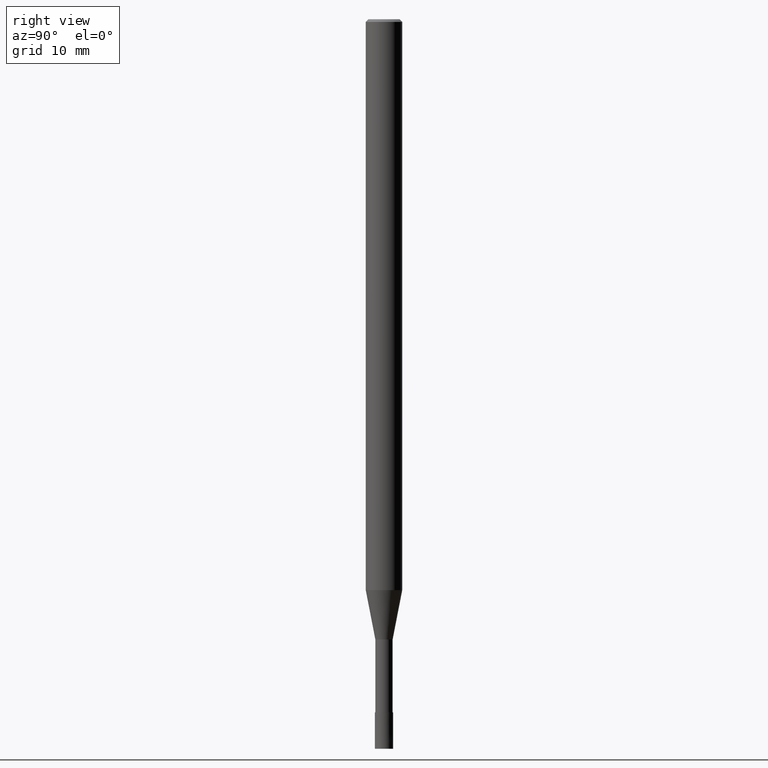
[diagram: clean part render]
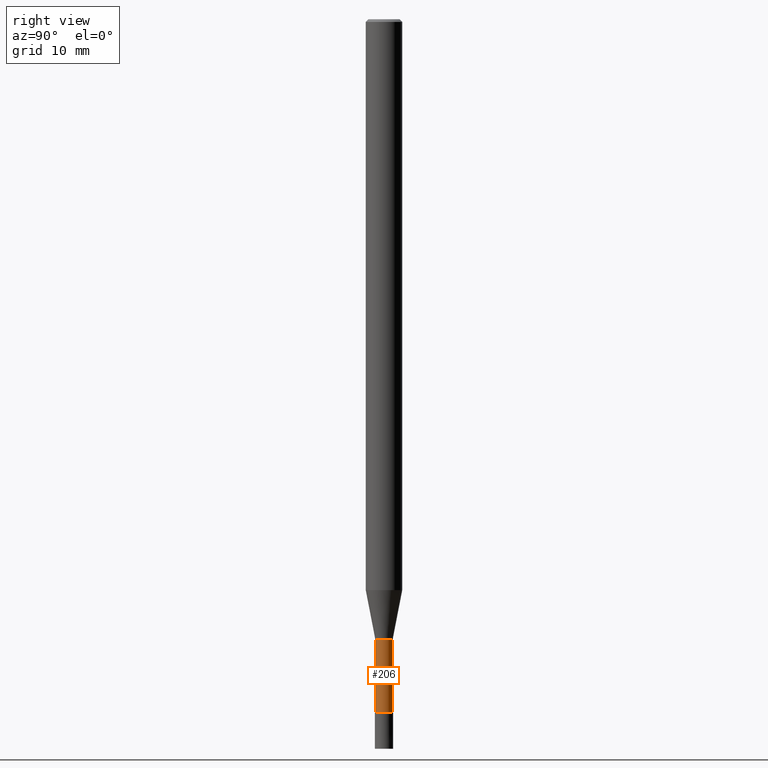
[diagram: same view with one face highlighted and labeled with its STEP entity id]
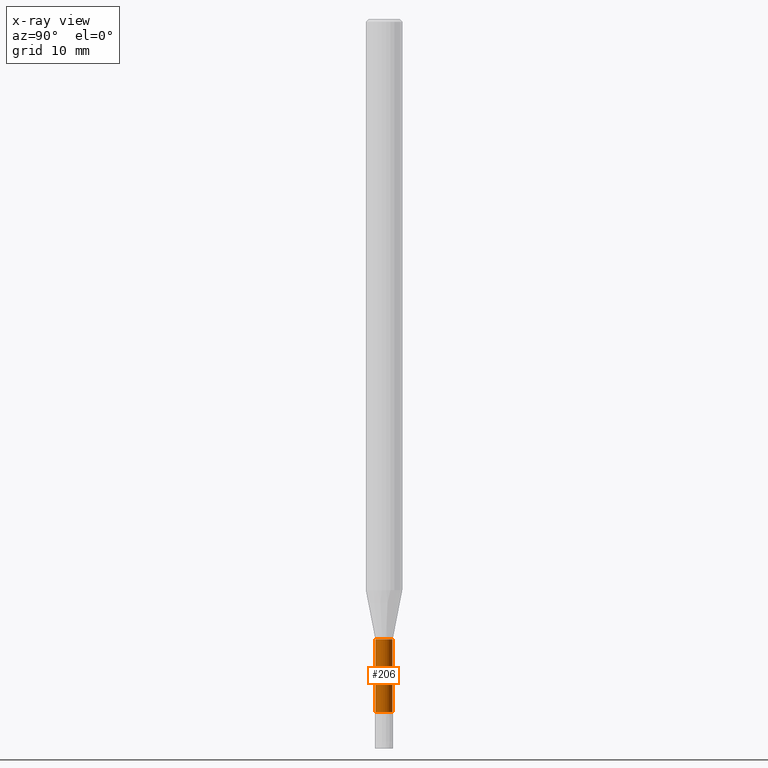
[diagram: x-ray of the same camera — body ghosted, the highlighted face saturated]
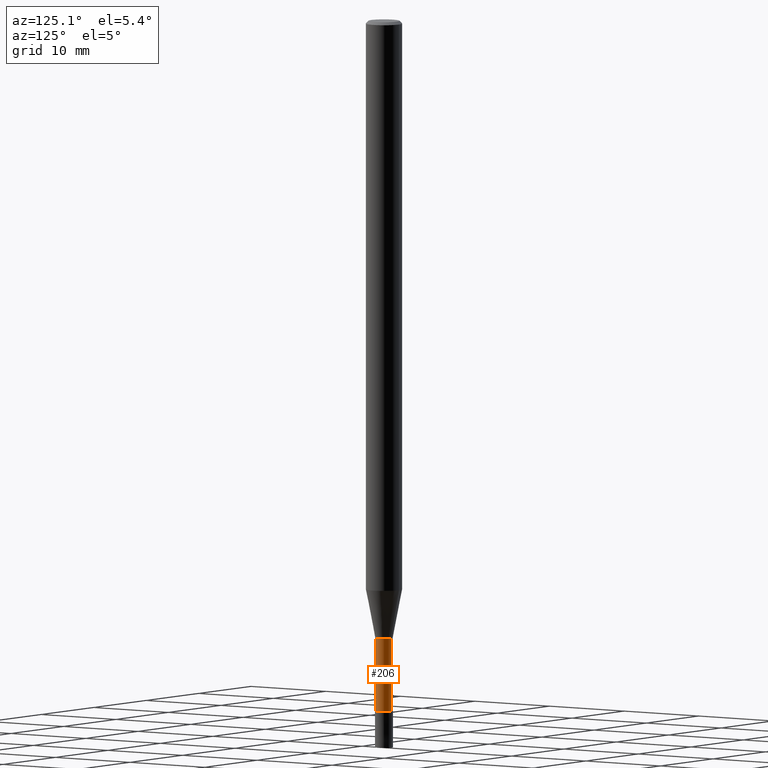
[diagram: same view with one face highlighted and labeled with its STEP entity id]
A machine part, right view. The second image highlights one B-rep face of the part: STEP entity #206.
The next image is the same camera in x-ray: the body ghosted, the highlighted face saturated — about 0% of this face is hidden behind the body in this view.
A second angle (auxiliary view) of the same face is appended — the face is thin or edge-on in the first view.
In plain terms, the highlighted cylindrical surface (edge-blend (fillet) strip) has radius 0.9499 mm, axis along (-0, -0, 1).
Its self-contained STEP definition (entity closure, byte-faithful):
#98=EDGE_CURVE('',#120,#146,#235,.T.);
#106=EDGE_CURVE('',#112,#146,#246,.T.);
#112=VERTEX_POINT('',#252);
#120=VERTEX_POINT('',#260);
#126=EDGE_CURVE('',#120,#188,#266,.T.);
#146=VERTEX_POINT('',#291);
#188=VERTEX_POINT('',#338);
#198=EDGE_CURVE('',#188,#112,#350,.T.);
#206=ADVANCED_FACE('',(#358),#359,.T.);
#235=CIRCLE('',#381,0.94995);
#246=LINE('',#394,#395);
#252=CARTESIAN_POINT('',(1.16331480581357E-016,-0.94995,-76.0));
#260=CARTESIAN_POINT('',(0.0,0.94995,-68.0));
#266=LINE('',#422,#423);
#291=CARTESIAN_POINT('',(1.16331480581357E-016,-0.94995,-68.0));
#338=CARTESIAN_POINT('',(0.0,0.94995,-76.0));
#350=CIRCLE('',#526,0.94995);
#358=FACE_OUTER_BOUND('',#536,.T.);
#359=CYLINDRICAL_SURFACE('',#537,0.94995);
#381=AXIS2_PLACEMENT_3D('',#546,#547,#548);
#394=CARTESIAN_POINT('',(1.16331480581357E-016,-0.94995,-72.0));
#395=VECTOR('',#568,1.0);
#422=CARTESIAN_POINT('',(-1.16331480581357E-016,0.94995,-72.0));
#423=VECTOR('',#577,1.0);
#526=AXIS2_PLACEMENT_3D('',#694,#695,#696);
#536=EDGE_LOOP('',(#704,#705,#706,#707));
#537=AXIS2_PLACEMENT_3D('',#708,#709,#710);
#546=CARTESIAN_POINT('',(0.0,0.0,-68.0));
#547=DIRECTION('',(0.0,0.0,-1.0));
#548=DIRECTION('',(0.0,1.0,0.0));
#568=DIRECTION('',(-0.0,-0.0,1.0));
#577=DIRECTION('',(0.0,0.0,-1.0));
#694=CARTESIAN_POINT('',(0.0,0.0,-76.0));
#695=DIRECTION('',(0.0,0.0,-1.0));
#696=DIRECTION('',(0.0,1.0,0.0));
#704=ORIENTED_EDGE('',*,*,#126,.F.);
#705=ORIENTED_EDGE('',*,*,#98,.T.);
#706=ORIENTED_EDGE('',*,*,#106,.F.);
#707=ORIENTED_EDGE('',*,*,#198,.F.);
#708=CARTESIAN_POINT('',(0.0,0.0,-72.0));
#709=DIRECTION('',(-0.0,-0.0,1.0));
#710=DIRECTION('',(0.0,1.0,0.0));